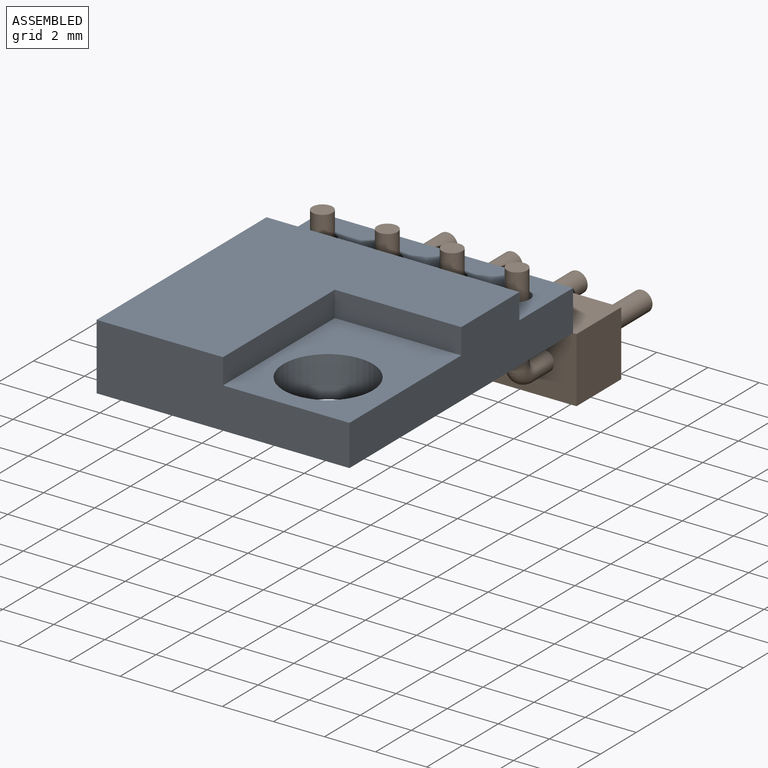
[diagram: assembled view]
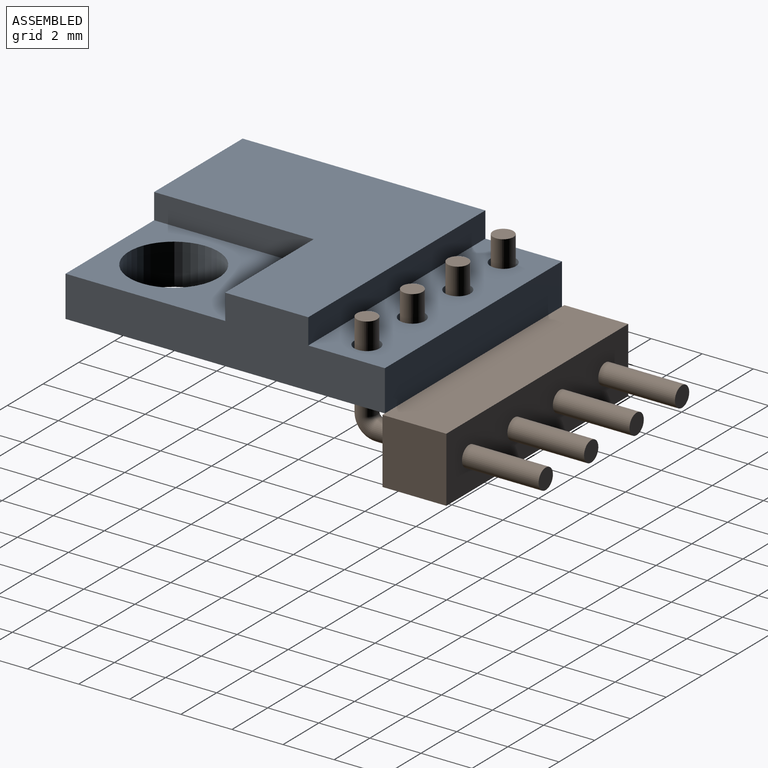
[diagram: assembled view, second angle]
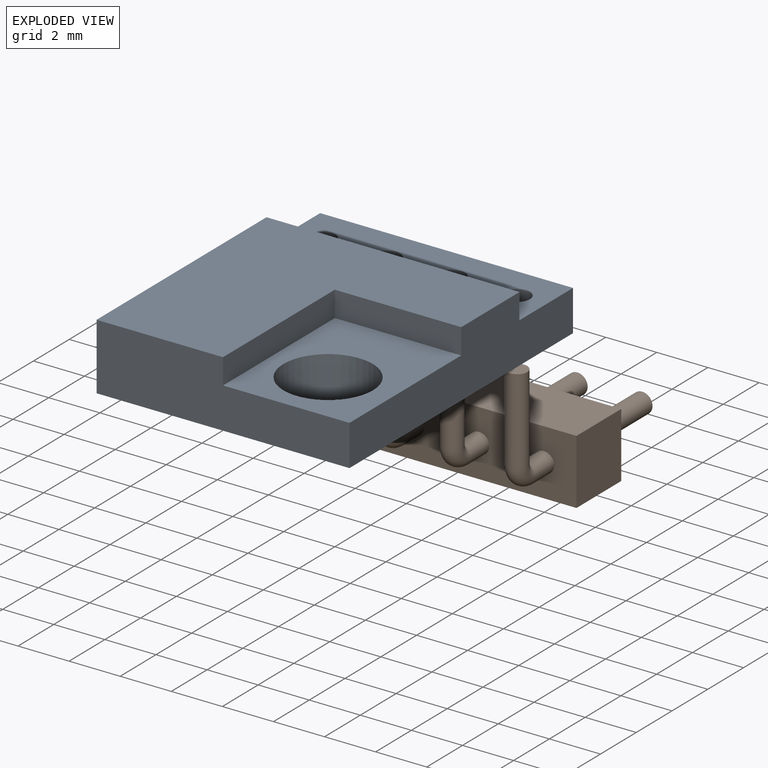
[diagram: exploded view]
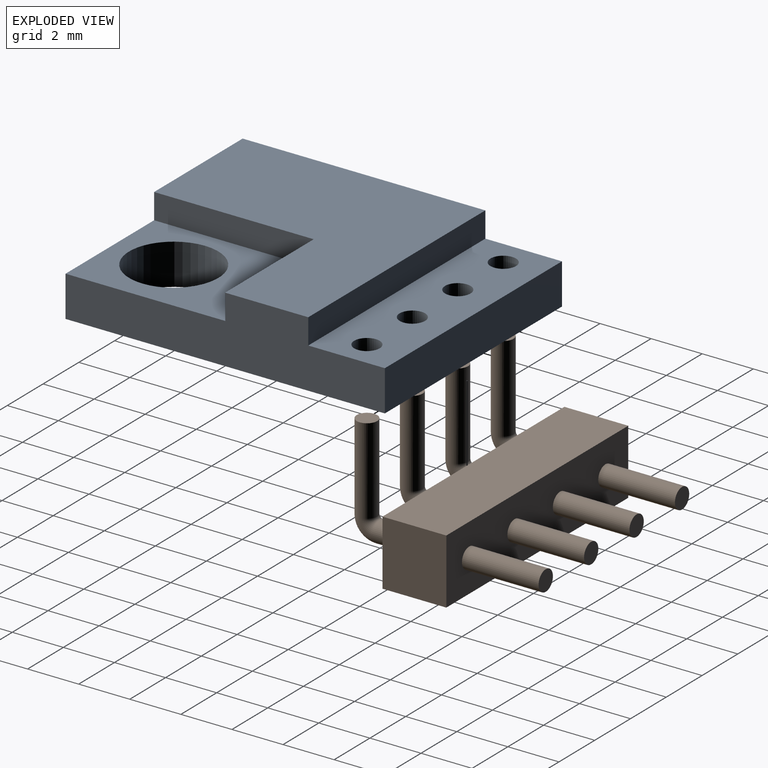
[diagram: exploded view, second angle]
ASSEMBLY  parts=2 mates=3
PART A: 16 faces, bbox 9.9x12.5x2.6 mm
  f0: plane 9.9x3mm, normal (0,0,1), area 26.6mm2, adj f2,f3,f4,f5,f6,f7,f10,f14
  f1: plane 6.25x4.95mm, normal (0,0,1), area 21.3mm2, adj f2,f8,f9,f12,f13
  f2: plane 12.5x2.6mm, normal (1,0,0), area 23.2mm2, adj f0,f1,f3,f9,f11,f13,f14,f15
  f3: plane 9.9x1.6mm, normal (0,1,0), area 15.8mm2, adj f0,f2,f4,f11
  f4: plane 12.5x2.6mm, normal (-1,0,0), area 29.5mm2, adj f0,f3,f9,f11,f14,f15
  f5: cylinder r=0.5mm len=1.6mm, axis (0,0,-1), area 5mm2, adj f0,f11
  f6: cylinder r=0.5mm len=1.6mm, axis (0,0,-1), area 5mm2, adj f0,f11
  f7: cylinder r=0.5mm len=1.6mm, axis (0,0,-1), area 5mm2, adj f0,f11
  f8: cylinder r=1.75mm len=3.5mm, axis (0,0,-1), area 17.6mm2, adj f1,f11
  f9: plane 9.9x2.6mm, normal (0,-1,0), area 20.8mm2, adj f1,f2,f4,f11,f12,f15
  f10: cylinder r=0.5mm len=1.6mm, axis (0,0,-1), area 5mm2, adj f0,f11
  f11: plane 12.5x9.9mm, normal (0,0,-1), area 111mm2, adj f2,f3,f4,f5,f6,f7,f8,f9
  f12: plane 6.25x1mm, normal (1,0,0), area 6.2mm2, adj f1,f9,f13,f15
  f13: plane 4.95x1mm, normal (0,-1,0), area 4.9mm2, adj f1,f2,f12,f15
  f14: plane 9.9x1mm, normal (0,1,0), area 9.9mm2, adj f0,f2,f4,f15
  f15: plane 9.9x9.5mm, normal (0,0,1), area 63.1mm2, adj f2,f4,f9,f12,f13,f14
PART B: 30 faces, bbox 10.2x5.2x7.5 mm
  f0: cylinder r=0.4mm len=3.38mm, axis (0,-1,0), area 8.5mm2, adj f12,f29
  f1: cylinder r=0.4mm len=3.38mm, axis (0,-1,0), area 8.5mm2, adj f16,f28
  f2: cylinder r=0.4mm len=3.38mm, axis (0,-1,0), area 8.5mm2, adj f20,f27
  f3: cylinder r=0.4mm len=3.38mm, axis (0,-1,0), area 8.5mm2, adj f25,f26
  f4: plane 10.17x2.5mm, normal (0,1,0), area 25.4mm2, adj f5,f7,f8,f21
  f5: plane 2.55x2.5mm, normal (-1,0,0), area 6.4mm2, adj f4,f6,f7,f8
  f6: plane 10.17x2.5mm, normal (0,-1,0), area 25.4mm2, adj f5,f7,f8,f21
  f7: plane 10.17x2.55mm, normal (0,0,-1), area 23.9mm2, adj f4,f5,f6,f11,f15,f19,f21,f24
  f8: plane 10.17x2.55mm, normal (0,0,1), area 23.9mm2, adj f4,f5,f6,f10,f14,f18,f21,f23
  f9: plane 0.8x0.8mm, normal (0,0,1), area 0.5mm2, adj f10
  f10: cylinder r=0.4mm len=3mm, axis (0,0,-1), area 7.5mm2, adj f8,f9
  f11: cylinder r=0.4mm len=1mm, axis (0,0,-1), area 2.5mm2, adj f7,f12
  f12: torus R=0.5mm, axis (-1,0,0), area 2mm2, adj f0,f11
  f13: plane 0.8x0.8mm, normal (0,0,1), area 0.5mm2, adj f14
  f14: cylinder r=0.4mm len=3mm, axis (0,0,-1), area 7.5mm2, adj f8,f13
  f15: cylinder r=0.4mm len=1mm, axis (0,0,-1), area 2.5mm2, adj f7,f16
  f16: torus R=0.5mm, axis (-1,0,0), area 2mm2, adj f1,f15
  f17: plane 0.8x0.8mm, normal (0,0,1), area 0.5mm2, adj f18
  f18: cylinder r=0.4mm len=3mm, axis (0,0,-1), area 7.5mm2, adj f8,f17
  f19: cylinder r=0.4mm len=1mm, axis (0,0,-1), area 2.5mm2, adj f7,f20
  f20: torus R=0.5mm, axis (-1,0,0), area 2mm2, adj f2,f19
  f21: plane 2.55x2.5mm, normal (1,0,0), area 6.4mm2, adj f4,f6,f7,f8
  f22: plane 0.8x0.8mm, normal (0,0,1), area 0.5mm2, adj f23
  f23: cylinder r=0.4mm len=3mm, axis (0,0,-1), area 7.5mm2, adj f8,f22
  f24: cylinder r=0.4mm len=1mm, axis (0,0,-1), area 2.5mm2, adj f7,f25
  f25: torus R=0.5mm, axis (-1,0,0), area 2mm2, adj f3,f24
  f26: plane 0.8x0.8mm, normal (0,-1,0), area 0.5mm2, adj f3
  f27: plane 0.8x0.8mm, normal (0,-1,0), area 0.5mm2, adj f2
  f28: plane 0.8x0.8mm, normal (0,-1,0), area 0.5mm2, adj f1
  f29: plane 0.8x0.8mm, normal (0,-1,0), area 0.5mm2, adj f0
PLACE A at identity fixed
PLACE B rot(axis=(-1,0,0),90deg) t=(-3.81,8.75,-1.27)mm
MATE cylindrical B.f0 <-> A.f7  axis (0,0,1) through (-3.81,4.75,0.91)mm
MATE cylindrical B.f3 <-> A.f10  axis (0,0,1) through (3.81,4.75,0.91)mm
MATE planar A.f11 <-> B.f6  axis (0,0,-1) through (-0.21,0.19,0)mm
